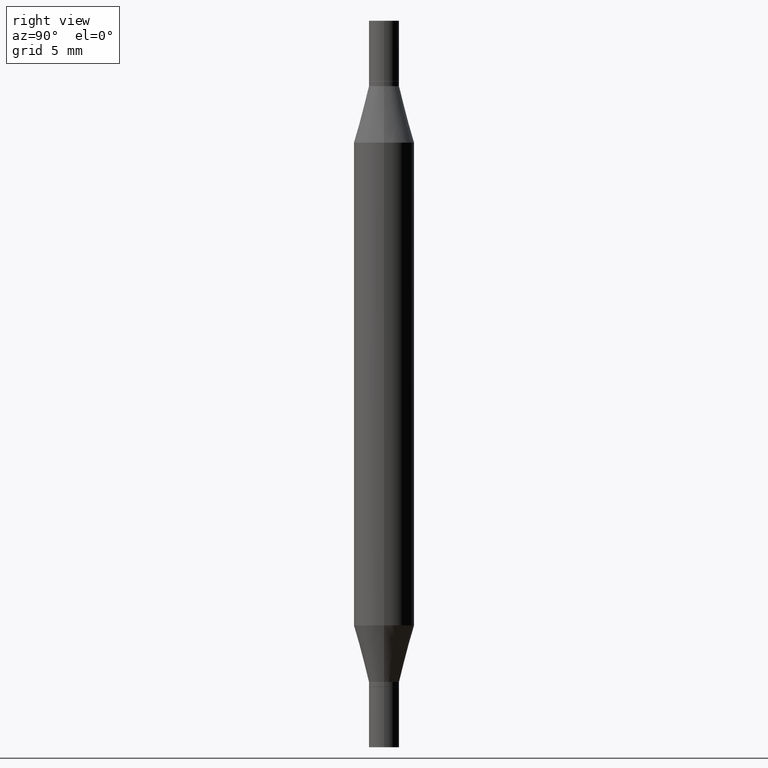
[diagram: clean part render]
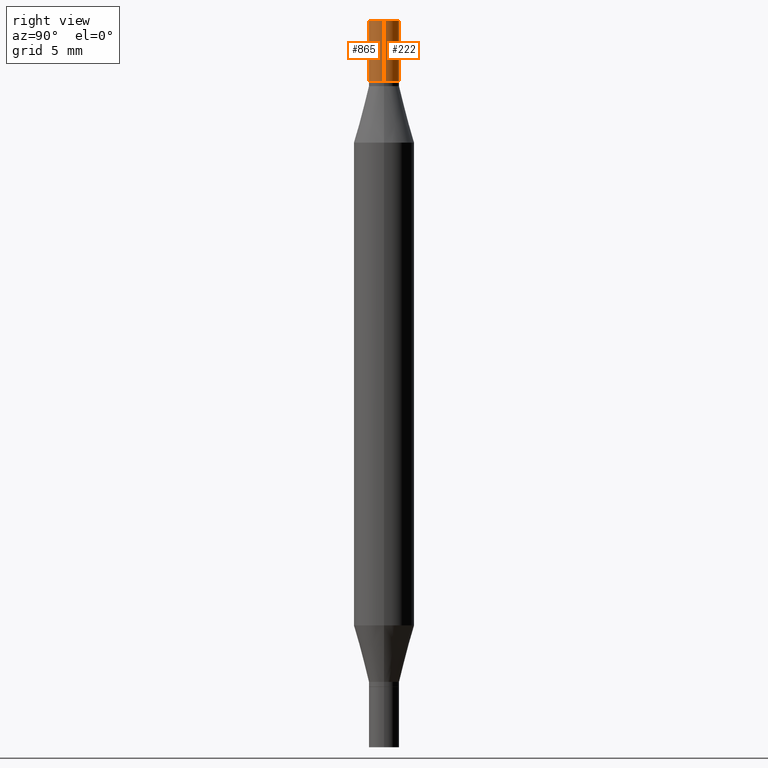
[diagram: same view with one multi-face feature highlighted, each face labeled with its STEP entity id]
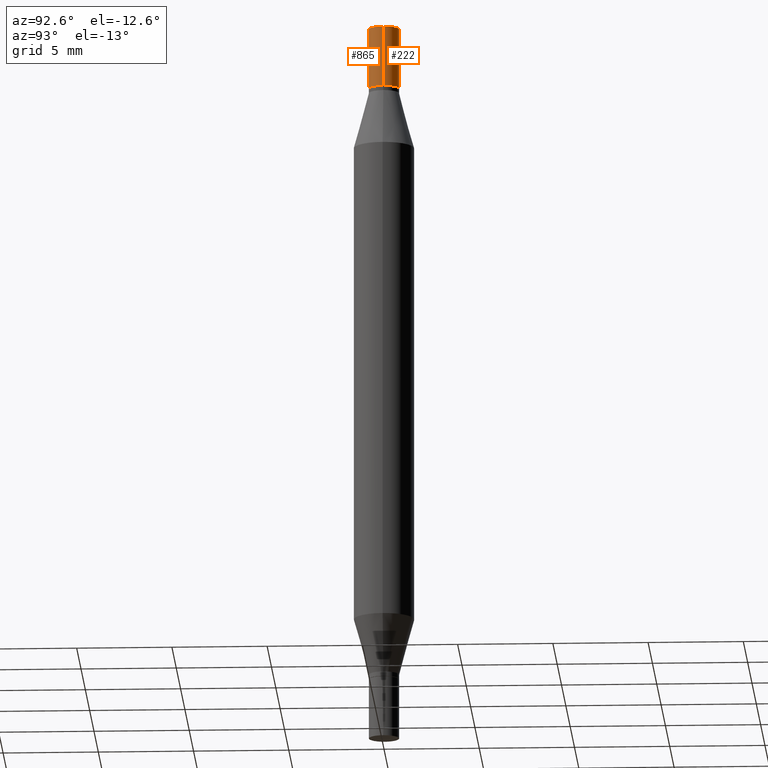
[diagram: same view with one multi-face feature highlighted, each face labeled with its STEP entity id]
A machine part, right view. The highlighted faces form ONE feature: a constant-radius fillet chain: 2 tangent blend faces with common blend radius 0.7937 mm. The faces share edges in the B-rep.
A second angle (auxiliary view) of the same feature is appended — it is thin or edge-on in the first view.
Their STEP definitions:
[1] entity #222 (Cylinder):
#6 = ORIENTED_EDGE ( 'NONE', *, *, #871, .T. ) ;
#9 = VERTEX_POINT ( 'NONE', #831 ) ;
#14 = LINE ( 'NONE', #623, #563 ) ;
#17 = DIRECTION ( 'NONE',  ( 1.000000000000000000, -6.982962677686266711E-15, 0.000000000000000000 ) ) ;
#30 = EDGE_LOOP ( 'NONE', ( #113, #794, #640, #6 ) ) ;
#113 = ORIENTED_EDGE ( 'NONE', *, *, #427, .F. ) ;
#140 = DIRECTION ( 'NONE',  ( 1.000000000000000000, -6.982962677686266711E-15, 0.000000000000000000 ) ) ;
#160 = CIRCLE ( 'NONE', #343, 0.03125000000000000000 ) ;
#181 = CARTESIAN_POINT ( 'NONE',  ( 0.03125000000000000000, -6.544504034593494659E-16, -0.1249999999999993477 ) ) ;
#200 = CARTESIAN_POINT ( 'NONE',  ( 0.000000000000000000, -5.237464825353201062E-15, -1.499999999999999556 ) ) ;
#222 = ADVANCED_FACE ( 'NONE', ( #878 ), #428, .T. ) ;
#254 = DIRECTION ( 'NONE',  ( -2.445468806185136877E-29, -3.491805094961123683E-15, -1.000000000000000000 ) ) ;
#318 = DIRECTION ( 'NONE',  ( -2.445468806185136877E-29, -3.491805094961123683E-15, -1.000000000000000000 ) ) ;
#340 = CARTESIAN_POINT ( 'NONE',  ( 0.03125000000000000000, -2.179747665892097452E-16, 5.463695987328526437E-16 ) ) ;
#342 = VECTOR ( 'NONE', #254, 39.37007874015748143 ) ;
#343 = AXIS2_PLACEMENT_3D ( 'NONE', #910, #698, #17 ) ;
#427 = EDGE_CURVE ( 'NONE', #9, #689, #14, .T. ) ;
#428 = CYLINDRICAL_SURFACE ( 'NONE', #644, 0.03125000000000000000 ) ;
#460 = CARTESIAN_POINT ( 'NONE',  ( 3.668203209277704895E-29, 2.428170884860868470E-19, 5.463695987328526437E-16 ) ) ;
#468 = DIRECTION ( 'NONE',  ( 2.445468806185136597E-29, 3.491805094961124077E-15, 1.000000000000000000 ) ) ;
#496 = DIRECTION ( 'NONE',  ( 1.000000000000000000, -6.982962677686262766E-15, 0.000000000000000000 ) ) ;
#539 = EDGE_CURVE ( 'NONE', #929, #942, #877, .T. ) ;
#563 = VECTOR ( 'NONE', #318, 39.37007874015748143 ) ;
#598 = AXIS2_PLACEMENT_3D ( 'NONE', #460, #468, #140 ) ;
#623 = CARTESIAN_POINT ( 'NONE',  ( -0.03125000000000000000, -5.023074262922840700E-15, -1.499999999999999556 ) ) ;
#640 = ORIENTED_EDGE ( 'NONE', *, *, #539, .T. ) ;
#644 = AXIS2_PLACEMENT_3D ( 'NONE', #200, #801, #496 ) ;
#689 = VERTEX_POINT ( 'NONE', #954 ) ;
#698 = DIRECTION ( 'NONE',  ( 2.445468806185136597E-29, 3.491805094961124077E-15, 1.000000000000000000 ) ) ;
#794 = ORIENTED_EDGE ( 'NONE', *, *, #837, .F. ) ;
#801 = DIRECTION ( 'NONE',  ( -2.445468806185136597E-29, -3.491805094961124077E-15, -1.000000000000000000 ) ) ;
#831 = CARTESIAN_POINT ( 'NONE',  ( -0.03125000000000000000, -3.604438916223908722E-18, 5.463695987328533339E-16 ) ) ;
#837 = EDGE_CURVE ( 'NONE', #929, #9, #907, .T. ) ;
#871 = EDGE_CURVE ( 'NONE', #942, #689, #160, .T. ) ;
#877 = LINE ( 'NONE', #940, #342 ) ;
#878 = FACE_OUTER_BOUND ( 'NONE', #30, .T. ) ;
#907 = CIRCLE ( 'NONE', #598, 0.03125000000000000000 ) ;
#910 = CARTESIAN_POINT ( 'NONE',  ( 3.362519608504562821E-29, -4.362328197816536805E-16, -0.1249999999999993477 ) ) ;
#929 = VERTEX_POINT ( 'NONE', #340 ) ;
#940 = CARTESIAN_POINT ( 'NONE',  ( 0.03125000000000000000, -5.455682409030896107E-15, -1.499999999999999556 ) ) ;
#942 = VERTEX_POINT ( 'NONE', #181 ) ;
#954 = CARTESIAN_POINT ( 'NONE',  ( -0.03125000000000000000, -3.604438916223908722E-18, -0.1249999999999993477 ) ) ;
[2] entity #865 (Cylinder):
#9 = VERTEX_POINT ( 'NONE', #831 ) ;
#14 = LINE ( 'NONE', #623, #563 ) ;
#133 = DIRECTION ( 'NONE',  ( 2.445468806185136597E-29, 3.491805094961124077E-15, 1.000000000000000000 ) ) ;
#134 = ORIENTED_EDGE ( 'NONE', *, *, #347, .F. ) ;
#138 = DIRECTION ( 'NONE',  ( 2.445468806185136597E-29, 3.491805094961124077E-15, 1.000000000000000000 ) ) ;
#144 = AXIS2_PLACEMENT_3D ( 'NONE', #827, #138, #445 ) ;
#181 = CARTESIAN_POINT ( 'NONE',  ( 0.03125000000000000000, -6.544504034593494659E-16, -0.1249999999999993477 ) ) ;
#221 = CYLINDRICAL_SURFACE ( 'NONE', #548, 0.03125000000000000000 ) ;
#227 = DIRECTION ( 'NONE',  ( 1.000000000000000000, -6.982962677686262766E-15, 0.000000000000000000 ) ) ;
#254 = DIRECTION ( 'NONE',  ( -2.445468806185136877E-29, -3.491805094961123683E-15, -1.000000000000000000 ) ) ;
#313 = DIRECTION ( 'NONE',  ( -2.445468806185136597E-29, -3.491805094961124077E-15, -1.000000000000000000 ) ) ;
#318 = DIRECTION ( 'NONE',  ( -2.445468806185136877E-29, -3.491805094961123683E-15, -1.000000000000000000 ) ) ;
#340 = CARTESIAN_POINT ( 'NONE',  ( 0.03125000000000000000, -2.179747665892097452E-16, 5.463695987328526437E-16 ) ) ;
#342 = VECTOR ( 'NONE', #254, 39.37007874015748143 ) ;
#347 = EDGE_CURVE ( 'NONE', #9, #929, #805, .T. ) ;
#368 = AXIS2_PLACEMENT_3D ( 'NONE', #618, #133, #836 ) ;
#381 = EDGE_LOOP ( 'NONE', ( #134, #569, #777, #879 ) ) ;
#389 = FACE_OUTER_BOUND ( 'NONE', #381, .T. ) ;
#427 = EDGE_CURVE ( 'NONE', #9, #689, #14, .T. ) ;
#445 = DIRECTION ( 'NONE',  ( 1.000000000000000000, -6.982962677686266711E-15, 0.000000000000000000 ) ) ;
#539 = EDGE_CURVE ( 'NONE', #929, #942, #877, .T. ) ;
#548 = AXIS2_PLACEMENT_3D ( 'NONE', #916, #313, #227 ) ;
#563 = VECTOR ( 'NONE', #318, 39.37007874015748143 ) ;
#569 = ORIENTED_EDGE ( 'NONE', *, *, #427, .T. ) ;
#618 = CARTESIAN_POINT ( 'NONE',  ( 3.668203209277704895E-29, 2.428170884860868470E-19, 5.463695987328526437E-16 ) ) ;
#623 = CARTESIAN_POINT ( 'NONE',  ( -0.03125000000000000000, -5.023074262922840700E-15, -1.499999999999999556 ) ) ;
#647 = CIRCLE ( 'NONE', #144, 0.03125000000000000000 ) ;
#689 = VERTEX_POINT ( 'NONE', #954 ) ;
#777 = ORIENTED_EDGE ( 'NONE', *, *, #784, .T. ) ;
#784 = EDGE_CURVE ( 'NONE', #689, #942, #647, .T. ) ;
#805 = CIRCLE ( 'NONE', #368, 0.03125000000000000000 ) ;
#827 = CARTESIAN_POINT ( 'NONE',  ( 3.362519608504562821E-29, -4.362328197816536805E-16, -0.1249999999999993477 ) ) ;
#831 = CARTESIAN_POINT ( 'NONE',  ( -0.03125000000000000000, -3.604438916223908722E-18, 5.463695987328533339E-16 ) ) ;
#836 = DIRECTION ( 'NONE',  ( 1.000000000000000000, -6.982962677686266711E-15, 0.000000000000000000 ) ) ;
#865 = ADVANCED_FACE ( 'NONE', ( #389 ), #221, .T. ) ;
#877 = LINE ( 'NONE', #940, #342 ) ;
#879 = ORIENTED_EDGE ( 'NONE', *, *, #539, .F. ) ;
#916 = CARTESIAN_POINT ( 'NONE',  ( 0.000000000000000000, -5.237464825353201062E-15, -1.499999999999999556 ) ) ;
#929 = VERTEX_POINT ( 'NONE', #340 ) ;
#940 = CARTESIAN_POINT ( 'NONE',  ( 0.03125000000000000000, -5.455682409030896107E-15, -1.499999999999999556 ) ) ;
#942 = VERTEX_POINT ( 'NONE', #181 ) ;
#954 = CARTESIAN_POINT ( 'NONE',  ( -0.03125000000000000000, -3.604438916223908722E-18, -0.1249999999999993477 ) ) ;